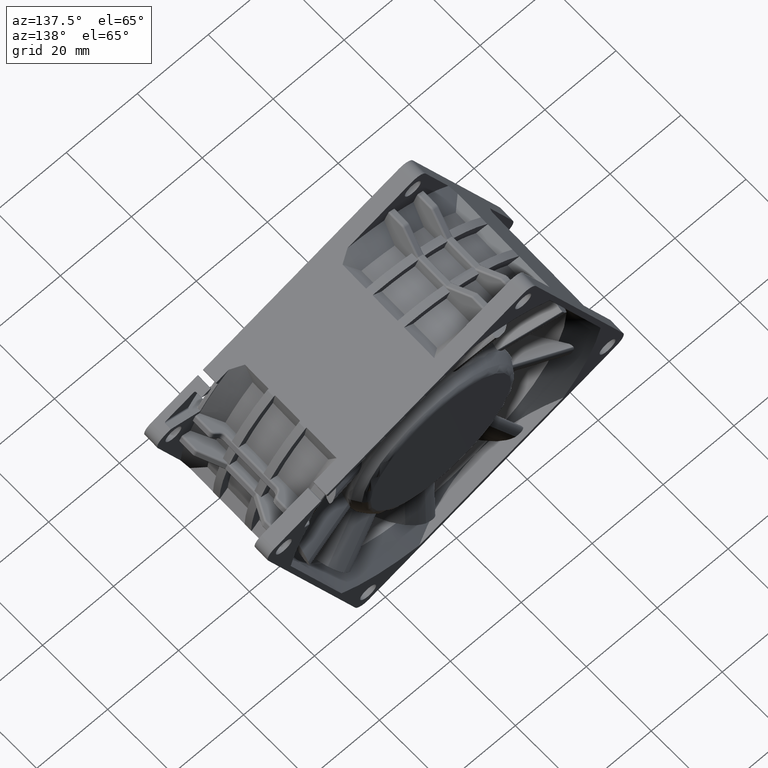
[diagram: clean part render]
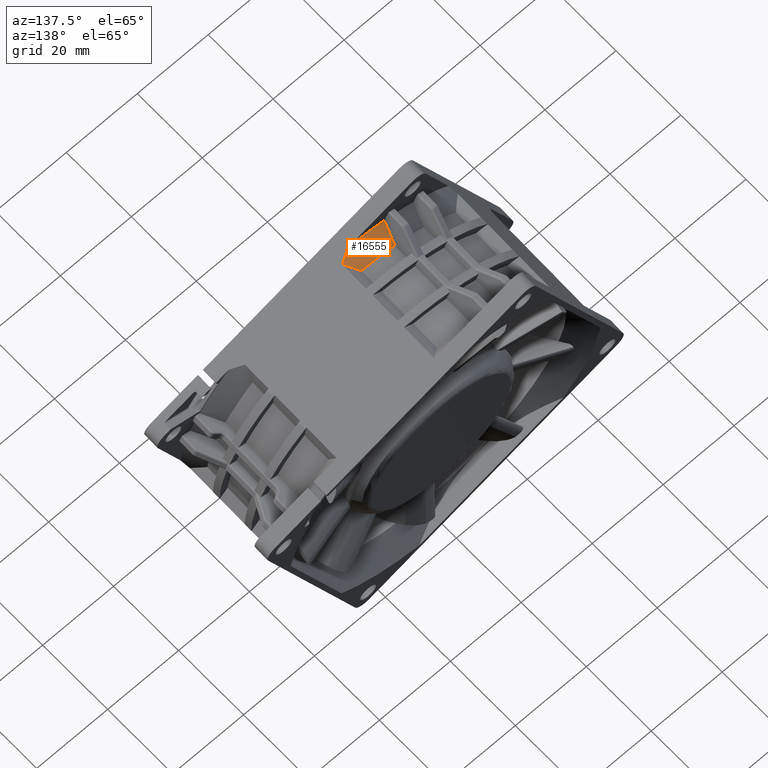
[diagram: same view with one face highlighted and labeled with its STEP entity id]
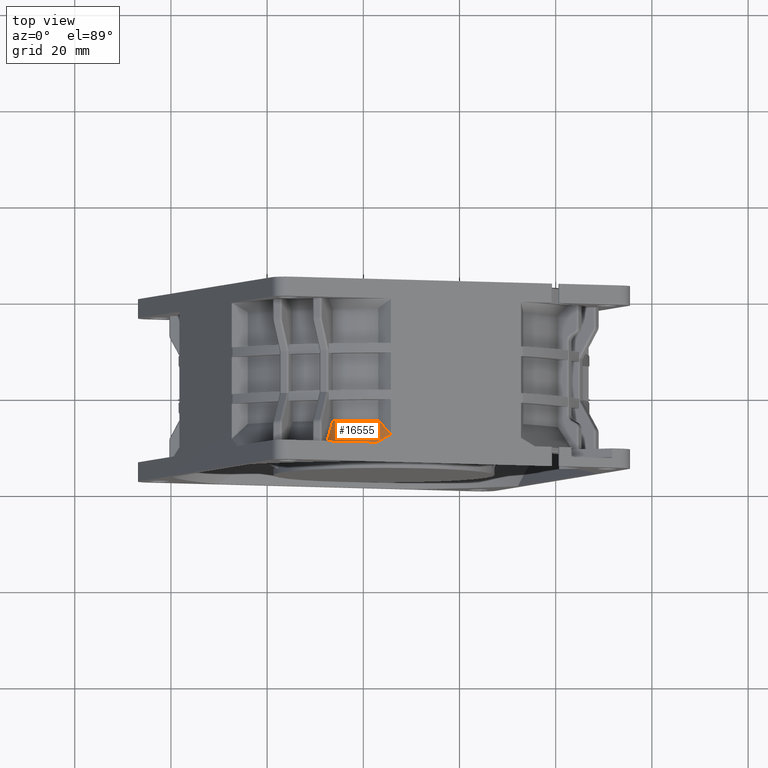
[diagram: same view with one face highlighted and labeled with its STEP entity id]
A machine part, auxiliary view. The second image highlights one B-rep face of the part: STEP entity #16555.
A second angle (top view) of the same face is appended — the face is thin or edge-on in the first view.
In plain terms, the highlighted conical surface has half-angle 34.308 deg.
Its self-contained STEP definition (entity closure, byte-faithful):
#5480=CARTESIAN_POINT('',(-3.999997887974E1,1.457522348948E1,
-1.512753685398E1));
#5481=CARTESIAN_POINT('',(-3.999997887974E1,1.492959334534E1,
-1.530533685696E1));
#5482=CARTESIAN_POINT('',(-4.000000930574E1,1.563429505013E1,
-1.567098318663E1));
#5483=CARTESIAN_POINT('',(-3.999999911032E1,1.668193758239E1,
-1.624526996222E1));
#5484=CARTESIAN_POINT('',(-3.999999587211E1,1.737288292233E1,
-1.664583328385E1));
#5485=CARTESIAN_POINT('',(-3.999999587211E1,1.771688794066E1,-1.685E1));
#5487=CARTESIAN_POINT('',(-3.457815297145E1,2.679997837840E1,-1.685E1));
#5488=CARTESIAN_POINT('',(-3.432090036185E1,2.654272576881E1,
-1.632106028128E1));
#5489=CARTESIAN_POINT('',(-3.380630336489E1,2.602812877185E1,
-1.526321247434E1));
#5490=CARTESIAN_POINT('',(-3.303413068871E1,2.525595609567E1,
-1.367653727095E1));
#5491=CARTESIAN_POINT('',(-3.251915324311E1,2.474097865006E1,
-1.261882908056E1));
#5492=CARTESIAN_POINT('',(-3.226160921475E1,2.448343462170E1,-1.209E1));
#5494=CARTESIAN_POINT('',(0.E0,0.E0,-1.209E1));
#5495=DIRECTION('',(0.E0,0.E0,1.E0));
#5496=DIRECTION('',(-7.965829435740E-1,6.045292499185E-1,0.E0));
#5497=AXIS2_PLACEMENT_3D('',#5494,#5495,#5496);
#5499=CARTESIAN_POINT('',(-3.709629694895E1,1.625163915855E1,
-1.208997601731E1));
#5500=CARTESIAN_POINT('',(-3.741929267785E1,1.606515748752E1,
-1.241388510840E1));
#5501=CARTESIAN_POINT('',(-3.806457862373E1,1.569265420303E1,
-1.307134539524E1));
#5502=CARTESIAN_POINT('',(-3.903261687468E1,1.513374153308E1,
-1.408395933141E1));
#5503=CARTESIAN_POINT('',(-3.967745442963E1,1.476143306756E1,
-1.477686354010E1));
#5504=CARTESIAN_POINT('',(-3.999997887974E1,1.457522348948E1,
-1.512753685398E1));
#5565=CARTESIAN_POINT('',(0.E0,0.E0,-1.685E1));
#5566=DIRECTION('',(0.E0,0.E0,1.E0));
#5567=DIRECTION('',(-7.903939144978E-1,6.125989388865E-1,0.E0));
#5568=AXIS2_PLACEMENT_3D('',#5565,#5566,#5567);
#8655=CARTESIAN_POINT('',(-3.999999587211E1,1.771688794066E1,-1.685E1));
#8656=VERTEX_POINT('',#8655);
#8657=VERTEX_POINT('',#5480);
#9638=CARTESIAN_POINT('',(-3.226160921475E1,2.448343462170E1,-1.209E1));
#9639=VERTEX_POINT('',#9638);
#9640=VERTEX_POINT('',#5487);
#9655=VERTEX_POINT('',#5499);
#16541=CARTESIAN_POINT('',(0.E0,0.E0,-1.447E1));
#16542=DIRECTION('',(0.E0,0.E0,-1.E0));
#16543=DIRECTION('',(1.E0,0.E0,0.E0));
#16544=AXIS2_PLACEMENT_3D('',#16541,#16542,#16543);
#16545=CONICAL_SURFACE('',#16544,4.2124E1,3.430778784472E1);
#16546=ORIENTED_EDGE('',*,*,#11332,.T.);
#16548=ORIENTED_EDGE('',*,*,#16547,.F.);
#16549=ORIENTED_EDGE('',*,*,#16413,.T.);
#16551=ORIENTED_EDGE('',*,*,#16550,.T.);
#16552=ORIENTED_EDGE('',*,*,#16533,.T.);
#16553=EDGE_LOOP('',(#16546,#16548,#16549,#16551,#16552));
#16554=FACE_OUTER_BOUND('',#16553,.F.);
#5486=B_SPLINE_CURVE_WITH_KNOTS('',3,(#5480,#5481,#5482,#5483,#5484,#5485),
.UNSPECIFIED.,.F.,.F.,(4,1,1,4),(0.E0,3.333333333333E-1,6.666666666667E-1,1.E0),
.UNSPECIFIED.);
#5493=B_SPLINE_CURVE_WITH_KNOTS('',3,(#5487,#5488,#5489,#5490,#5491,#5492),
.UNSPECIFIED.,.F.,.F.,(4,1,1,4),(0.E0,3.333333333333E-1,6.666666666667E-1,1.E0),
.UNSPECIFIED.);
#5498=CIRCLE('',#5497,4.05E1);
#5505=B_SPLINE_CURVE_WITH_KNOTS('',3,(#5499,#5500,#5501,#5502,#5503,#5504),
.UNSPECIFIED.,.F.,.F.,(4,1,1,4),(0.E0,3.333333333333E-1,6.666666666667E-1,1.E0),
.UNSPECIFIED.);
#5569=CIRCLE('',#5568,4.3748E1);
#11332=EDGE_CURVE('',#8657,#8656,#5486,.T.);
#16413=EDGE_CURVE('',#9640,#9639,#5493,.T.);
#16533=EDGE_CURVE('',#9655,#8657,#5505,.T.);
#16547=EDGE_CURVE('',#9640,#8656,#5569,.T.);
#16550=EDGE_CURVE('',#9639,#9655,#5498,.T.);
#16555=ADVANCED_FACE('',(#16554),#16545,.T.);